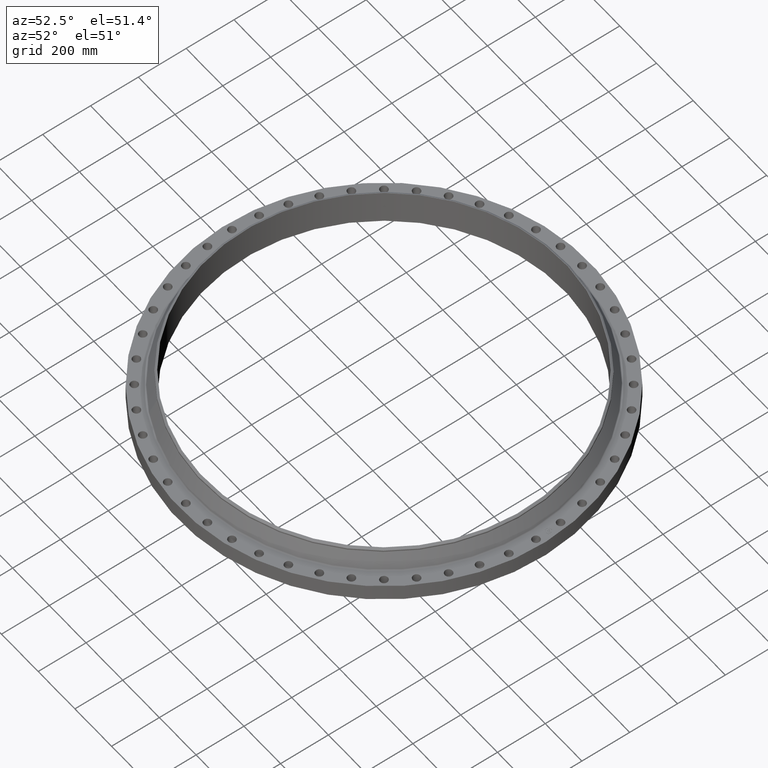
[diagram: clean part render]
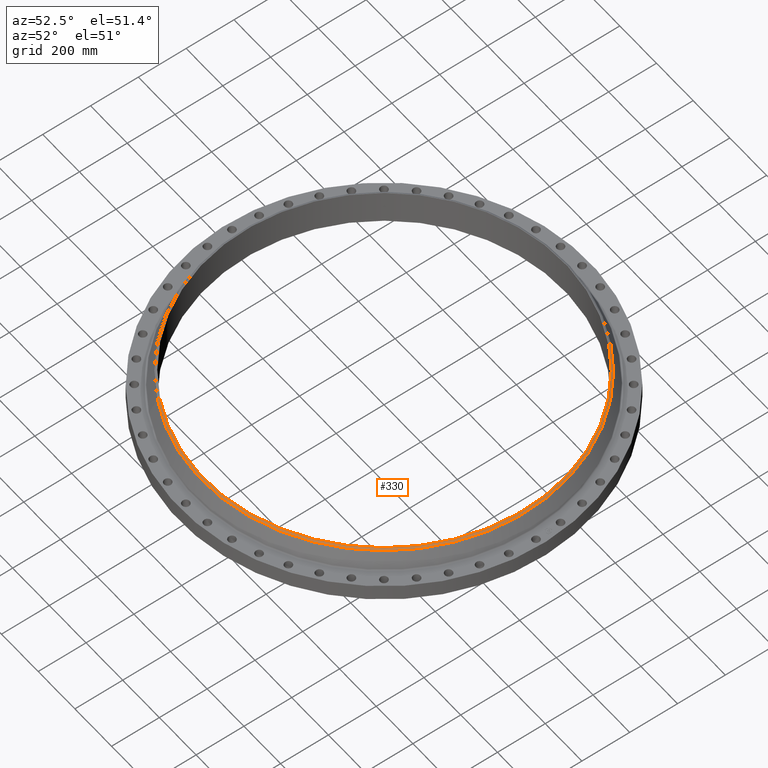
[diagram: same view with one face highlighted and labeled with its STEP entity id]
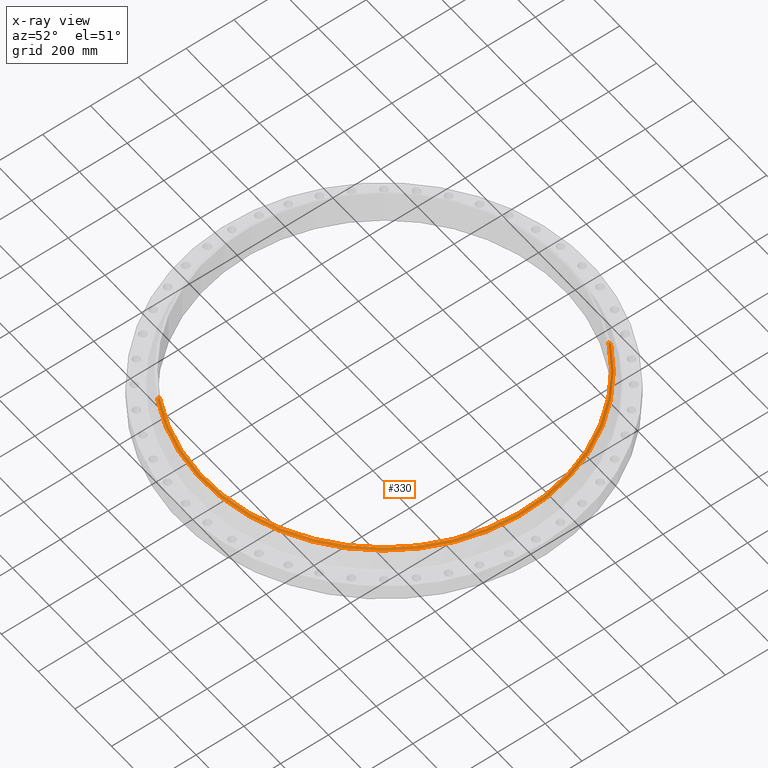
[diagram: x-ray of the same camera — body ghosted, the highlighted face saturated]
A machine part, auxiliary view. The second image highlights one B-rep face of the part: STEP entity #330.
The next image is the same camera in x-ray: the body ghosted, the highlighted face saturated — about 0% of this face is hidden behind the body in this view.
In plain terms, the highlighted conical surface has half-angle 52.5 deg.
Its self-contained STEP definition (entity closure, byte-faithful):
#278=AXIS2_PLACEMENT_3D('Circle Axis2P3D',#276,#277,$) ;
#303=AXIS2_PLACEMENT_3D('Cone Axis2P3D',#300,#301,#302) ;
#314=AXIS2_PLACEMENT_3D('Circle Axis2P3D',#312,#313,$) ;
#266=CARTESIAN_POINT('Vertex',(-14.3827661582,-26.3274768568,5.51021031628)) ;
#273=CARTESIAN_POINT('Vertex',(14.3827661582,26.3274768568,5.51021031628)) ;
#276=CARTESIAN_POINT('Axis2P3D Location',(0.,0.,5.51021031628)) ;
#300=CARTESIAN_POINT('Axis2P3D Location',(0.,0.,5.75000000002)) ;
#305=CARTESIAN_POINT('Line Origine',(14.3078559178,26.1903545815,5.63010515815)) ;
#309=CARTESIAN_POINT('Vertex',(14.2329456774,26.0532323062,5.75000000002)) ;
#312=CARTESIAN_POINT('Axis2P3D Location',(0.,0.,5.75000000002)) ;
#316=CARTESIAN_POINT('Vertex',(-14.2329456774,-26.0532323062,5.75000000002)) ;
#319=CARTESIAN_POINT('Line Origine',(-14.3078559178,-26.1903545815,5.63010515815)) ;
#277=DIRECTION('Axis2P3D Direction',(0.,0.,-0.0393700787402)) ;
#301=DIRECTION('Axis2P3D Direction',(-0.,-0.,-0.0393700787402)) ;
#302=DIRECTION('Axis2P3D XDirection',(-0.0188750212049,-0.0345504945626,0.)) ;
#306=DIRECTION('Vector Direction',(0.014974561121,0.02741075027,-0.023966985394)) ;
#313=DIRECTION('Axis2P3D Direction',(0.,-0.,-0.0393700787402)) ;
#320=DIRECTION('Vector Direction',(-0.014974561121,-0.02741075027,-0.023966985394)) ;
#307=VECTOR('Line Direction',#306,0.0393700787402) ;
#321=VECTOR('Line Direction',#320,0.0393700787402) ;
#325=ORIENTED_EDGE('',*,*,#311,.F.) ;
#326=ORIENTED_EDGE('',*,*,#318,.T.) ;
#327=ORIENTED_EDGE('',*,*,#323,.T.) ;
#328=ORIENTED_EDGE('',*,*,#280,.F.) ;
#330=ADVANCED_FACE('PartBody',(#329),#304,.T.) ;
#279=CIRCLE('generated circle',#278,30.0000000001) ;
#315=CIRCLE('generated circle',#314,29.6875000001) ;
#304=CONICAL_SURFACE('Cone',#303,29.6875000001,0.916297857297) ;
#280=EDGE_CURVE('',#274,#267,#279,.T.) ;
#311=EDGE_CURVE('',#310,#274,#308,.T.) ;
#318=EDGE_CURVE('',#310,#317,#315,.T.) ;
#323=EDGE_CURVE('',#317,#267,#322,.T.) ;
#324=EDGE_LOOP('',(#325,#326,#327,#328)) ;
#329=FACE_OUTER_BOUND('',#324,.T.) ;
#308=LINE('Line',#305,#307) ;
#322=LINE('Line',#319,#321) ;
#267=VERTEX_POINT('',#266) ;
#274=VERTEX_POINT('',#273) ;
#310=VERTEX_POINT('',#309) ;
#317=VERTEX_POINT('',#316) ;